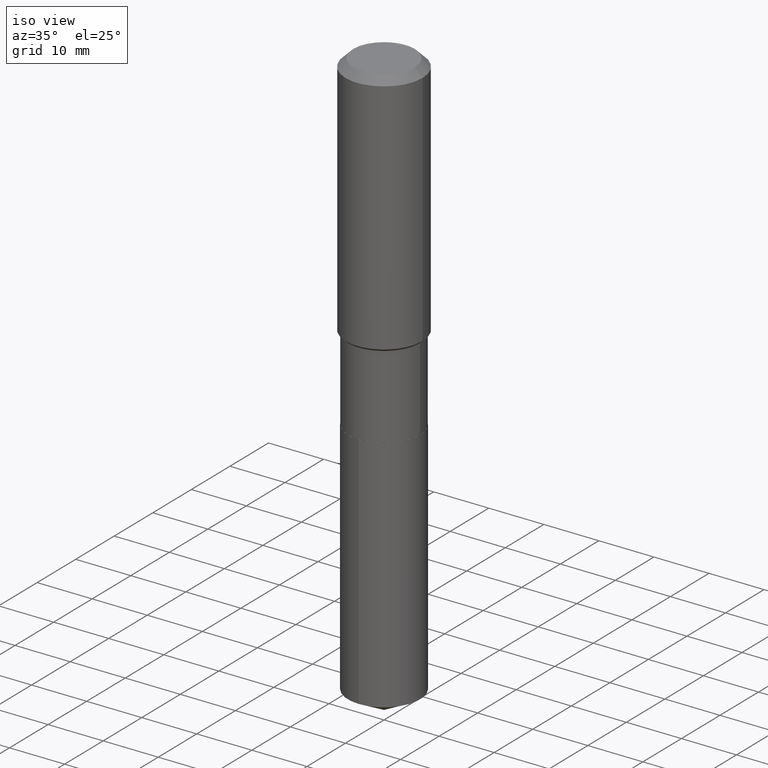
[diagram: clean part render]
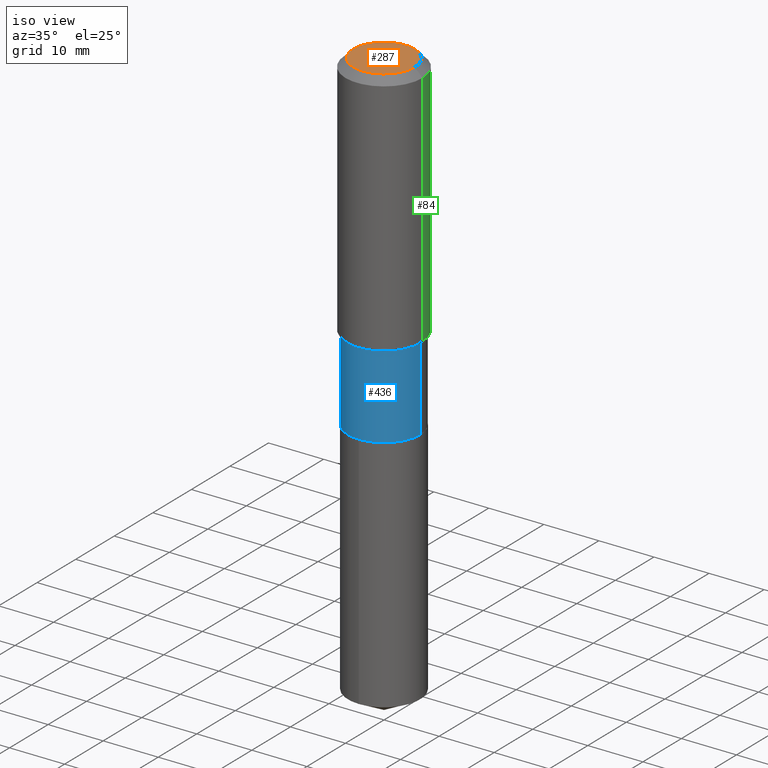
[diagram: same view with three faces highlighted in distinct colors, each labeled with its STEP entity id]
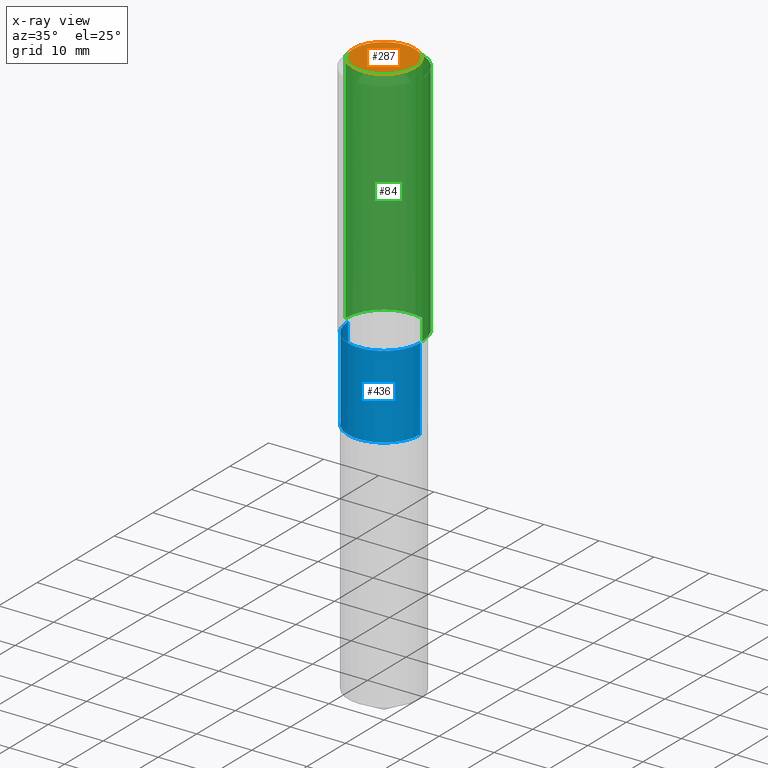
[diagram: x-ray of the same camera — body ghosted, the three highlighted faces saturated]
A machine part, iso view with three faces highlighted in distinct colors.
The next image is the same camera in x-ray (body ghosted, the three faces saturated) — at least one of them is partly hidden behind the body in this view.
Their STEP definitions:

[orange] entity #287 — the highlighted planar face has unit normal (0, -0, -1).
#5 = CIRCLE ( 'NONE', #18, 0.2204800000000000093 ) ;
#18 = AXIS2_PLACEMENT_3D ( 'NONE', #30, #303, #74 ) ;
#30 = CARTESIAN_POINT ( 'NONE',  ( -9.439721640706190018E-47, 1.347742071746724849E-32, 3.860086710912454339E-18 ) ) ;
#74 = DIRECTION ( 'NONE',  ( 1.000000000000000000, -6.982962677686266711E-15, 4.876132675269083677E-29 ) ) ;
#111 = ORIENTED_EDGE ( 'NONE', *, *, #464, .T. ) ;
#120 = CIRCLE ( 'NONE', #214, 0.2204800000000000093 ) ;
#126 = CARTESIAN_POINT ( 'NONE',  ( -0.2204800000000000093, 1.635828836874783961E-15, 3.860086710901350968E-18 ) ) ;
#136 = DIRECTION ( 'NONE',  ( 1.000000000000000000, -6.982962677686266711E-15, 4.876132675269083677E-29 ) ) ;
#166 = FACE_OUTER_BOUND ( 'NONE', #199, .T. ) ;
#199 = EDGE_LOOP ( 'NONE', ( #299, #111 ) ) ;
#203 = PLANE ( 'NONE',  #240 ) ;
#214 = AXIS2_PLACEMENT_3D ( 'NONE', #409, #259, #136 ) ;
#216 = VERTEX_POINT ( 'NONE', #126 ) ;
#240 = AXIS2_PLACEMENT_3D ( 'NONE', #324, #390, #242 ) ;
#242 = DIRECTION ( 'NONE',  ( -1.000000000000000000, 6.982962677686265922E-15, -4.876176775795935793E-29 ) ) ;
#259 = DIRECTION ( 'NONE',  ( -2.445468806185136597E-29, 3.491481338843145583E-15, 1.000000000000000000 ) ) ;
#270 = CARTESIAN_POINT ( 'NONE',  ( 0.2204800000000000093, -1.797903149065768707E-15, 3.860086710924123164E-18 ) ) ;
#287 = ADVANCED_FACE ( 'NONE', ( #166 ), #203, .F. ) ;
#299 = ORIENTED_EDGE ( 'NONE', *, *, #325, .T. ) ;
#303 = DIRECTION ( 'NONE',  ( -2.445468806185136597E-29, 3.491481338843145583E-15, 1.000000000000000000 ) ) ;
#324 = CARTESIAN_POINT ( 'NONE',  ( -4.719860820353095009E-47, 6.738710358733624243E-33, 1.930043355456227170E-18 ) ) ;
#325 = EDGE_CURVE ( 'NONE', #216, #482, #120, .T. ) ;
#390 = DIRECTION ( 'NONE',  ( 2.438088387897960049E-29, -3.491481338843145188E-15, -1.000000000000000000 ) ) ;
#409 = CARTESIAN_POINT ( 'NONE',  ( -9.439721640706190018E-47, 1.347742071746724849E-32, 3.860086710912454339E-18 ) ) ;
#464 = EDGE_CURVE ( 'NONE', #482, #216, #5, .T. ) ;
#482 = VERTEX_POINT ( 'NONE', #270 ) ;

[blue] entity #436 — the highlighted cylindrical surface (partial cylindrical patch) has radius 6.5481 mm, axis along (-0, 0, 1).
#16 = CARTESIAN_POINT ( 'NONE',  ( 5.784756461030941795E-29, -8.259099107033462339E-15, -2.365500000000000380 ) ) ;
#24 = EDGE_CURVE ( 'NONE', #67, #443, #81, .T. ) ;
#28 = CARTESIAN_POINT ( 'NONE',  ( 0.000000000000000000, 0.000000000000000000, 0.000000000000000000 ) ) ;
#34 = AXIS2_PLACEMENT_3D ( 'NONE', #16, #163, #206 ) ;
#48 = CARTESIAN_POINT ( 'NONE',  ( 4.336060740246867168E-29, -6.190745561902783658E-15, -1.773100000000000565 ) ) ;
#67 = VERTEX_POINT ( 'NONE', #234 ) ;
#69 = LINE ( 'NONE', #181, #297 ) ;
#78 = CARTESIAN_POINT ( 'NONE',  ( 0.2577999999999999736, -1.005930688534098151E-14, -2.365500000000000380 ) ) ;
#81 = CIRCLE ( 'NONE', #343, 0.2577999999999999181 ) ;
#86 = CARTESIAN_POINT ( 'NONE',  ( -0.2577999999999999181, 1.831779172789537697E-15, -1.268101466267714406E-29 ) ) ;
#88 = CARTESIAN_POINT ( 'NONE',  ( -0.2578000000000000291, -5.393143161678585695E-15, -2.365500000000000380 ) ) ;
#89 = EDGE_CURVE ( 'NONE', #218, #67, #121, .T. ) ;
#109 = EDGE_LOOP ( 'NONE', ( #257, #289, #220, #363 ) ) ;
#121 = LINE ( 'NONE', #86, #179 ) ;
#133 = CIRCLE ( 'NONE', #34, 0.2577999999999999736 ) ;
#140 = DIRECTION ( 'NONE',  ( 1.000000000000000000, -6.982962677686267499E-15, 4.876176775795936353E-29 ) ) ;
#163 = DIRECTION ( 'NONE',  ( -2.445468806185136597E-29, 3.491481338843145583E-15, 1.000000000000000000 ) ) ;
#179 = VECTOR ( 'NONE', #232, 39.37007874015748143 ) ;
#181 = CARTESIAN_POINT ( 'NONE',  ( 0.2577999999999999181, -1.800207778307519167E-15, 1.257078372800191925E-29 ) ) ;
#187 = EDGE_CURVE ( 'NONE', #218, #477, #133, .T. ) ;
#190 = DIRECTION ( 'NONE',  ( 1.000000000000000000, -6.982962677686265922E-15, 0.000000000000000000 ) ) ;
#206 = DIRECTION ( 'NONE',  ( 1.000000000000000000, -6.982962677686264344E-15, 0.000000000000000000 ) ) ;
#218 = VERTEX_POINT ( 'NONE', #88 ) ;
#220 = ORIENTED_EDGE ( 'NONE', *, *, #393, .T. ) ;
#232 = DIRECTION ( 'NONE',  ( -2.445468806185136877E-29, 3.491481338843145188E-15, 1.000000000000000000 ) ) ;
#234 = CARTESIAN_POINT ( 'NONE',  ( -0.2577999999999999181, -5.393143161678585695E-15, -1.773100000000000565 ) ) ;
#257 = ORIENTED_EDGE ( 'NONE', *, *, #89, .F. ) ;
#264 = AXIS2_PLACEMENT_3D ( 'NONE', #28, #481, #140 ) ;
#289 = ORIENTED_EDGE ( 'NONE', *, *, #187, .T. ) ;
#297 = VECTOR ( 'NONE', #370, 39.37007874015748143 ) ;
#304 = DIRECTION ( 'NONE',  ( -2.445468806185136597E-29, 3.491481338843145583E-15, 1.000000000000000000 ) ) ;
#326 = FACE_OUTER_BOUND ( 'NONE', #109, .T. ) ;
#343 = AXIS2_PLACEMENT_3D ( 'NONE', #48, #304, #190 ) ;
#363 = ORIENTED_EDGE ( 'NONE', *, *, #24, .F. ) ;
#364 = CYLINDRICAL_SURFACE ( 'NONE', #264, 0.2577999999999999181 ) ;
#370 = DIRECTION ( 'NONE',  ( -2.445468806185136877E-29, 3.491481338843145188E-15, 1.000000000000000000 ) ) ;
#393 = EDGE_CURVE ( 'NONE', #477, #443, #69, .T. ) ;
#436 = ADVANCED_FACE ( 'NONE', ( #326 ), #364, .T. ) ;
#439 = CARTESIAN_POINT ( 'NONE',  ( 0.2577999999999999181, -7.990953340210302036E-15, -1.773100000000000565 ) ) ;
#443 = VERTEX_POINT ( 'NONE', #439 ) ;
#477 = VERTEX_POINT ( 'NONE', #78 ) ;
#481 = DIRECTION ( 'NONE',  ( -2.445468806185136597E-29, 3.491481338843145583E-15, 1.000000000000000000 ) ) ;

[green] entity #84 — the highlighted cylindrical surface (partial cylindrical patch) has radius 7.0002 mm, axis along (-0, 0, 1).
#7 = ORIENTED_EDGE ( 'NONE', *, *, #134, .T. ) ;
#8 = CARTESIAN_POINT ( 'NONE',  ( 4.292531395496771171E-29, -6.128597194071374975E-15, -1.755300000000000304 ) ) ;
#35 = EDGE_CURVE ( 'NONE', #70, #157, #474, .T. ) ;
#70 = VERTEX_POINT ( 'NONE', #269 ) ;
#77 = DIRECTION ( 'NONE',  ( 1.000000000000000000, -6.982962677686267499E-15, 4.876176775795935793E-29 ) ) ;
#84 = ADVANCED_FACE ( 'NONE', ( #184 ), #227, .T. ) ;
#91 = VECTOR ( 'NONE', #189, 39.37007874015748143 ) ;
#101 = ORIENTED_EDGE ( 'NONE', *, *, #486, .F. ) ;
#134 = EDGE_CURVE ( 'NONE', #157, #274, #342, .T. ) ;
#145 = ORIENTED_EDGE ( 'NONE', *, *, #171, .F. ) ;
#155 = DIRECTION ( 'NONE',  ( -2.445468806185136597E-29, 3.491481338843145583E-15, 1.000000000000000000 ) ) ;
#157 = VERTEX_POINT ( 'NONE', #471 ) ;
#171 = EDGE_CURVE ( 'NONE', #70, #418, #431, .T. ) ;
#184 = FACE_OUTER_BOUND ( 'NONE', #330, .T. ) ;
#189 = DIRECTION ( 'NONE',  ( -2.445468806185136877E-29, 3.491481338843145188E-15, 1.000000000000000000 ) ) ;
#200 = DIRECTION ( 'NONE',  ( -2.445468806185136877E-29, 3.491481338843145188E-15, 1.000000000000000000 ) ) ;
#204 = VECTOR ( 'NONE', #200, 39.37007874015748143 ) ;
#227 = CYLINDRICAL_SURFACE ( 'NONE', #229, 0.2756000000000001227 ) ;
#229 = AXIS2_PLACEMENT_3D ( 'NONE', #340, #155, #77 ) ;
#246 = AXIS2_PLACEMENT_3D ( 'NONE', #8, #385, #416 ) ;
#269 = CARTESIAN_POINT ( 'NONE',  ( 0.2756000000000002337, -8.053101708041710718E-15, -1.755300000000000304 ) ) ;
#271 = ORIENTED_EDGE ( 'NONE', *, *, #35, .T. ) ;
#272 = AXIS2_PLACEMENT_3D ( 'NONE', #300, #384, #380 ) ;
#274 = VERTEX_POINT ( 'NONE', #396 ) ;
#300 = CARTESIAN_POINT ( 'NONE',  ( 1.347942405969256063E-30, -1.924504513970354330E-16, -0.05512000000000035621 ) ) ;
#306 = CIRCLE ( 'NONE', #272, 0.2756000000000000116 ) ;
#330 = EDGE_LOOP ( 'NONE', ( #271, #7, #101, #145 ) ) ;
#340 = CARTESIAN_POINT ( 'NONE',  ( 0.000000000000000000, 0.000000000000000000, 0.000000000000000000 ) ) ;
#342 = LINE ( 'NONE', #381, #91 ) ;
#380 = DIRECTION ( 'NONE',  ( 1.000000000000000000, -6.982962677686265922E-15, 0.000000000000000000 ) ) ;
#381 = CARTESIAN_POINT ( 'NONE',  ( -0.2756000000000001227, 1.958255779754836984E-15, -1.355658510874252567E-29 ) ) ;
#384 = DIRECTION ( 'NONE',  ( -2.445468806185136597E-29, 3.491481338843145583E-15, 1.000000000000000000 ) ) ;
#385 = DIRECTION ( 'NONE',  ( -2.445468806185136597E-29, 3.491481338843145583E-15, 1.000000000000000000 ) ) ;
#396 = CARTESIAN_POINT ( 'NONE',  ( -0.2756000000000000116, -1.202268042979367764E-15, -0.05512000000000035621 ) ) ;
#416 = DIRECTION ( 'NONE',  ( 1.000000000000000000, -6.982962677686267499E-15, 0.000000000000000000 ) ) ;
#418 = VERTEX_POINT ( 'NONE', #434 ) ;
#431 = LINE ( 'NONE', #465, #204 ) ;
#434 = CARTESIAN_POINT ( 'NONE',  ( 0.2756000000000000116, -2.116954965367370658E-15, -0.05512000000000035621 ) ) ;
#465 = CARTESIAN_POINT ( 'NONE',  ( 0.2756000000000001227, -1.924504513970336137E-15, 1.343874319409360548E-29 ) ) ;
#471 = CARTESIAN_POINT ( 'NONE',  ( -0.2756000000000002337, -4.170341414316536808E-15, -1.755300000000000304 ) ) ;
#474 = CIRCLE ( 'NONE', #246, 0.2756000000000002337 ) ;
#486 = EDGE_CURVE ( 'NONE', #418, #274, #306, .T. ) ;